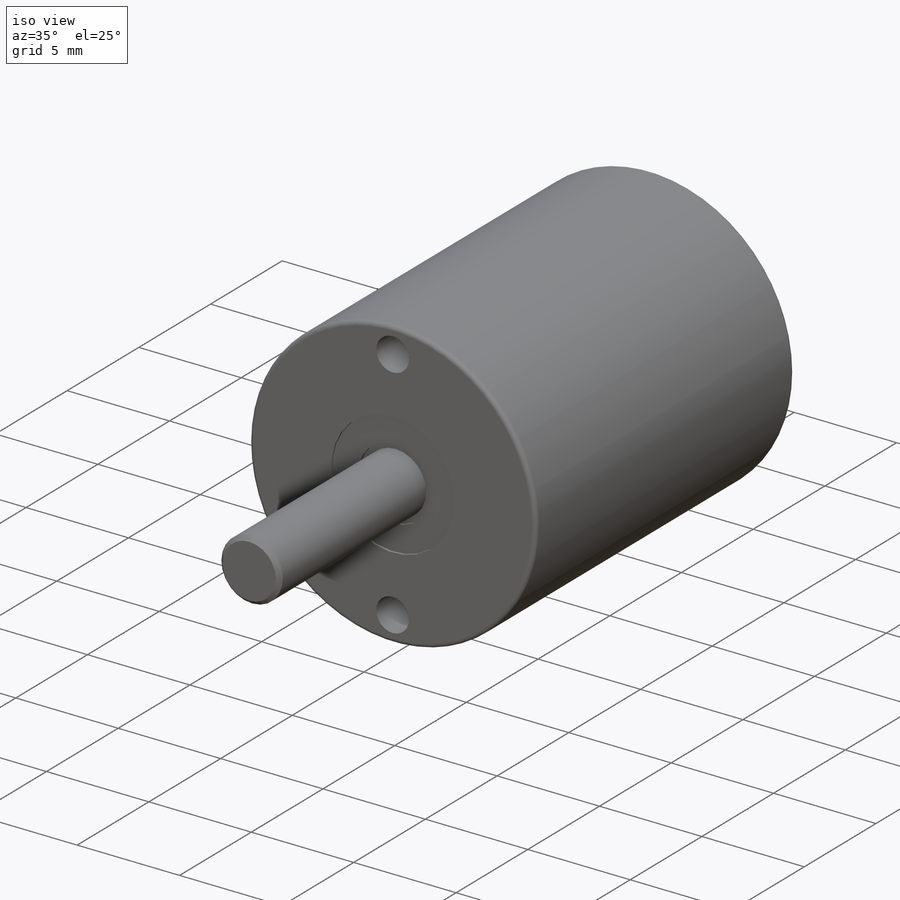
[diagram: iso view]
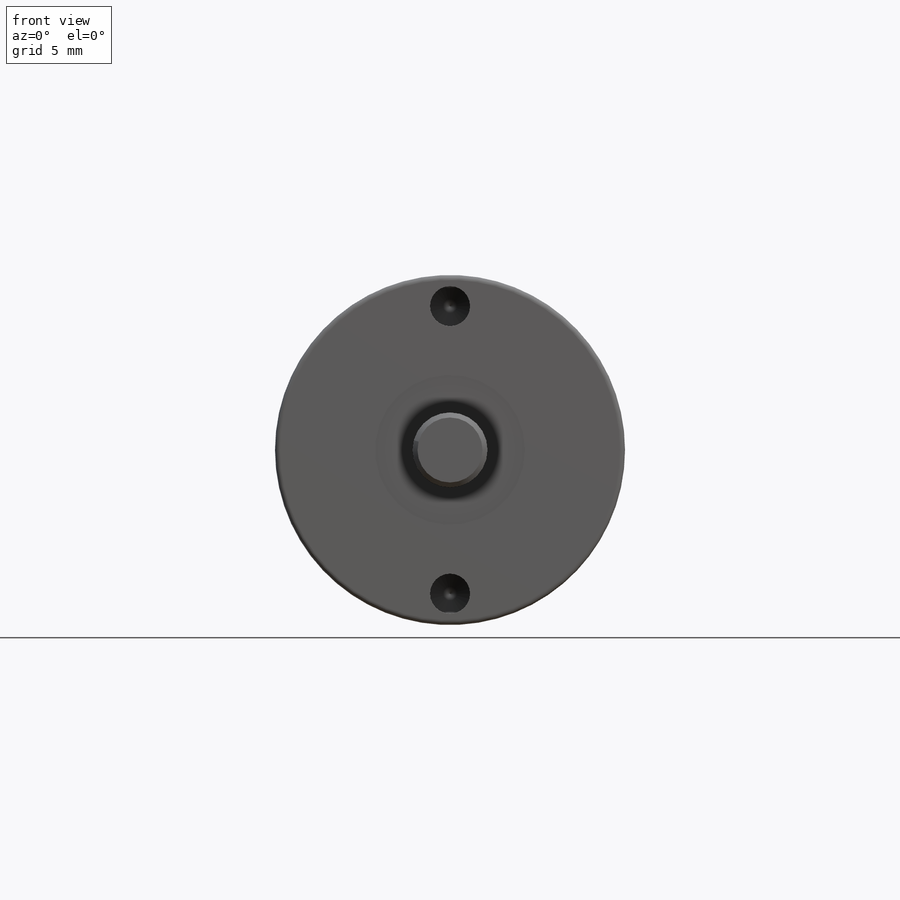
[diagram: front view]
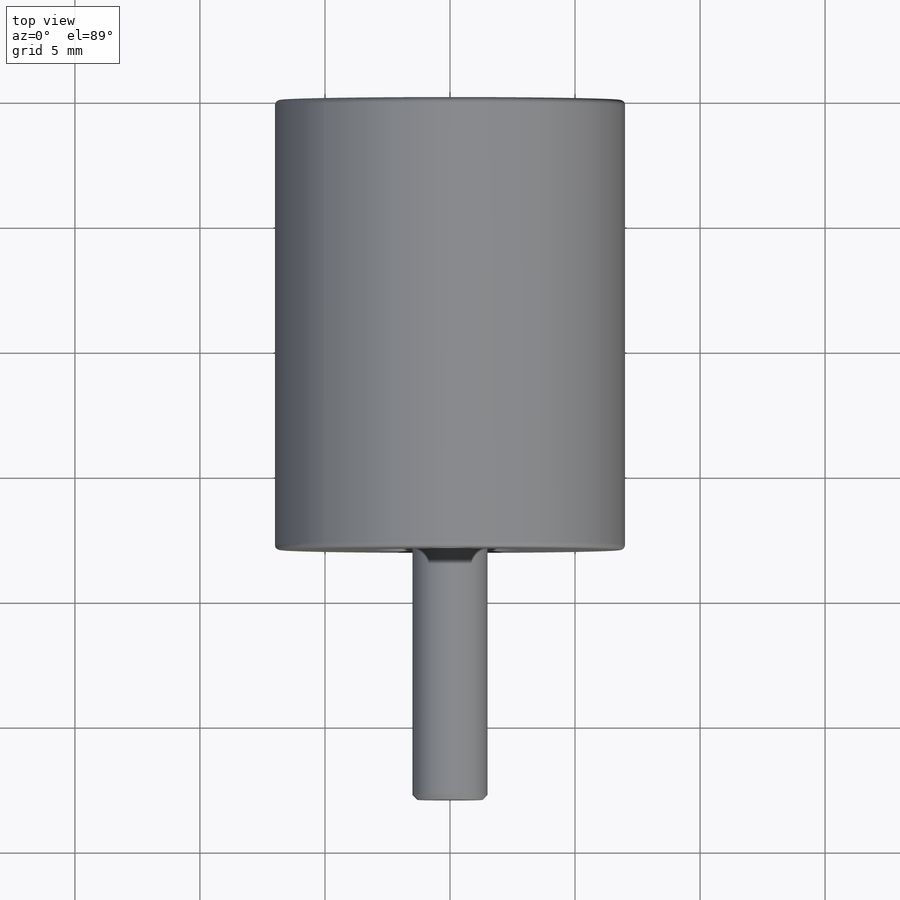
[diagram: top view]
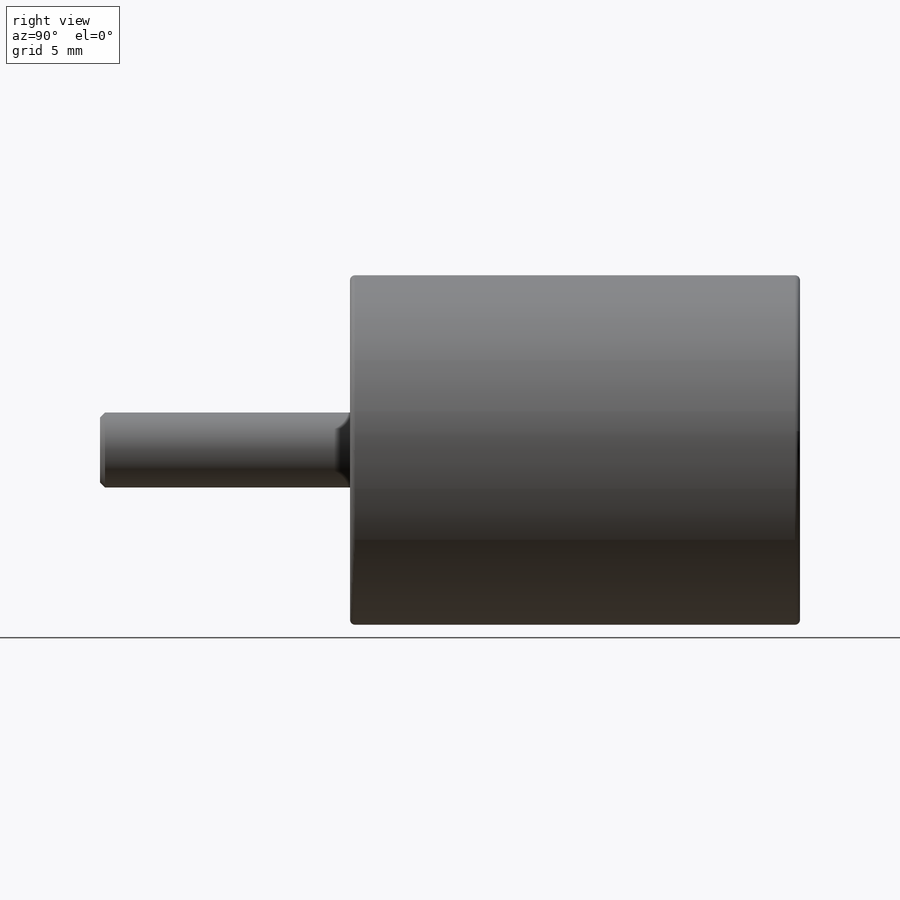
[diagram: right view]
SOLIDWORKS PART (.sldprt)
format: sldprt  version: not decoded by parser v0  size: 292,864 bytes
history: native  units: mm
features: sketch x7, plane x3, extrude x2, thread x2, cut_extrude x2, material x1, fillet x1, chamfer x1, hole x1 (+10 scaffold rows collapsed)
feature tree (30):
  scaffold x10  (default folders/planes/origin — collapsed)
  material  "材质 <未指定>"
  plane  "前视基准面"
  plane  "上视基准面"
  plane  "右视基准面"
  sketch  "草图1"  dims[D1=14.0mm]
  extrude  "凸台-拉伸1"  Depth=18mm
  fillet  "圆角1"  Radius=0.2mm
  sketch  "草图2"  dims[D1=3.0mm]
  extrude  "凸台-拉伸2"  Depth=10mm
  chamfer  "倒角1"  Distance=0.2mm Angle=45deg
  sketch  "草图3"  dims[D1=11.5mm]
  hole  "M2 螺纹孔1"  [1 undecoded]
  sketch  "3D草图1"
  sketch  "草图5"  dims[hole-wizard template sketch: 46 standard entries collapsed; hole parameters kept: c15.螺纹孔钻头直径=1.6mm c15.螺纹孔钻头深度=6.0mm c15.D3=~14.816244mm c15.导头角度=118.0deg]
  thread  "孔螺蚊线1"  Diameter=4mm  [1 undecoded]
  thread  "孔螺蚊线2"  Diameter=4mm  [1 undecoded]
  sketch  "草图6"  dims[D1=3.5mm]
  cut_extrude  "切除-拉伸1"  Depth=0.2mm
  sketch  "草图7"  dims[D1=6.0mm]
  cut_extrude  "切除-拉伸2"  Depth=0.1mm
decode coverage: 14 of 16 modeling features carry decoded parameters
note: ~ marks probable driven/reference dimensions
note: 3 parameter values undecoded
note: suppression state not decoded; provenance and decode notes live in map.json
